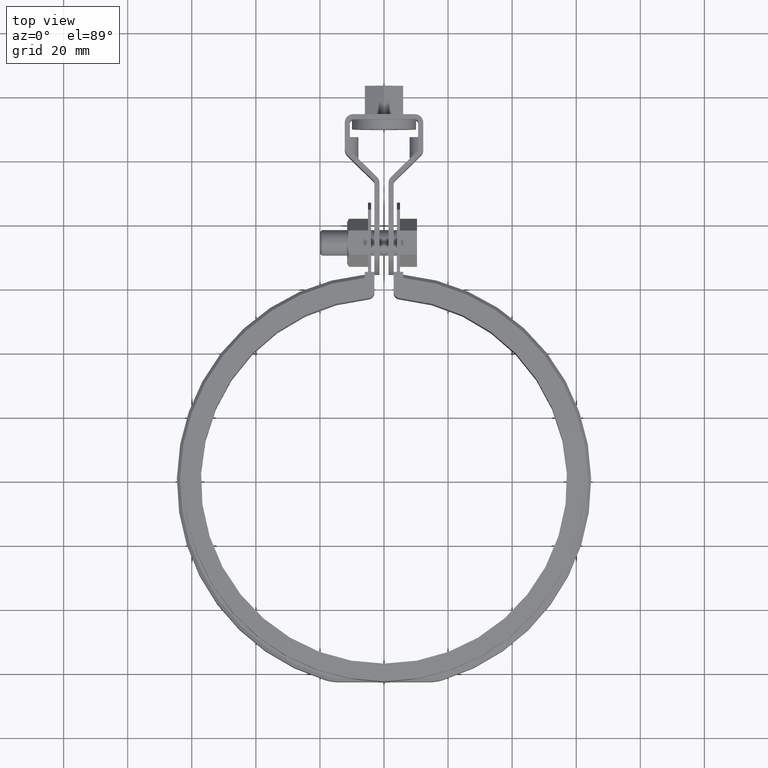
[diagram: clean part render]
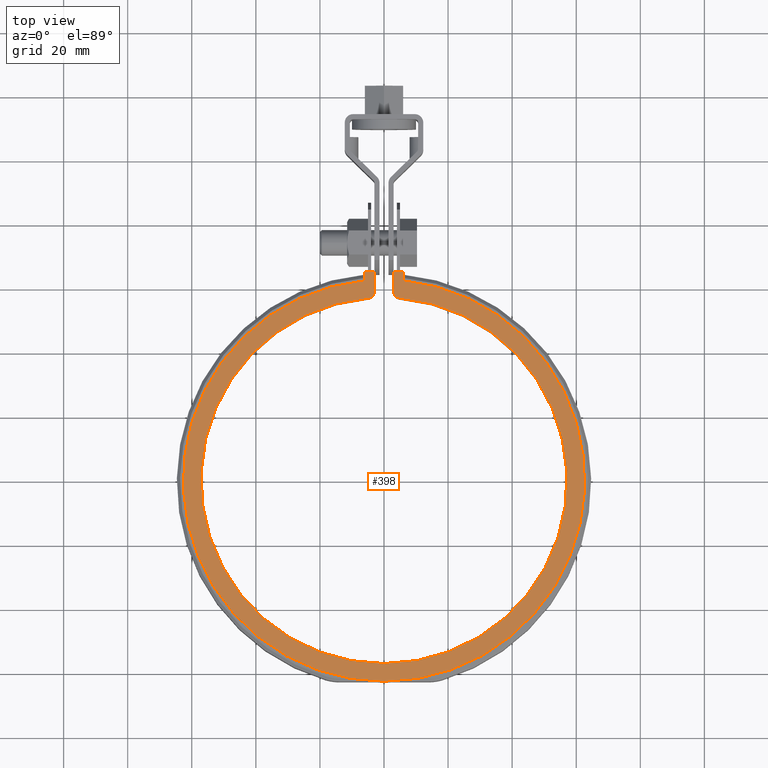
[diagram: same view with one face highlighted and labeled with its STEP entity id]
A machine part, top view. The second image highlights one B-rep face of the part: STEP entity #398.
In plain terms, the highlighted planar face has unit normal (0, 0, -1).
Its self-contained STEP definition (entity closure, byte-faithful):
#398 = ADVANCED_FACE( '', ( #702 ), #703, .F. );
#702 = FACE_OUTER_BOUND( '', #1594, .T. );
#703 = PLANE( '', #1595 );
#1594 = EDGE_LOOP( '', ( #3163, #3164, #3165, #3166, #3167, #3168, #3169, #3170, #3171, #3172 ) );
#1595 = AXIS2_PLACEMENT_3D( '', #3173, #3174, #3175 );
#3163 = ORIENTED_EDGE( '', *, *, #4433, .T. );
#3164 = ORIENTED_EDGE( '', *, *, #4421, .T. );
#3165 = ORIENTED_EDGE( '', *, *, #4402, .T. );
#3166 = ORIENTED_EDGE( '', *, *, #4375, .T. );
#3167 = ORIENTED_EDGE( '', *, *, #4410, .T. );
#3168 = ORIENTED_EDGE( '', *, *, #4425, .T. );
#3169 = ORIENTED_EDGE( '', *, *, #4434, .T. );
#3170 = ORIENTED_EDGE( '', *, *, #4327, .T. );
#3171 = ORIENTED_EDGE( '', *, *, #4435, .T. );
#3172 = ORIENTED_EDGE( '', *, *, #4436, .T. );
#3173 = CARTESIAN_POINT( '', ( 5.23468564512154, 60.8144995511336, 14.0000000000000 ) );
#3174 = DIRECTION( '', ( 0.000000000000000, 0.000000000000000, -1.00000000000000 ) );
#3175 = DIRECTION( '', ( 0.112630732099760, 0.993636914665851, 0.000000000000000 ) );
#4327 = EDGE_CURVE( '', #5015, #5016, #5017, .T. );
#4375 = EDGE_CURVE( '', #5095, #5093, #5096, .T. );
#4402 = EDGE_CURVE( '', #5142, #5095, #5143, .T. );
#4410 = EDGE_CURVE( '', #5093, #5155, #5157, .T. );
#4421 = EDGE_CURVE( '', #5172, #5142, #5173, .T. );
#4425 = EDGE_CURVE( '', #5155, #5178, #5180, .T. );
#4433 = EDGE_CURVE( '', #5191, #5172, #5192, .T. );
#4434 = EDGE_CURVE( '', #5178, #5015, #5193, .T. );
#4435 = EDGE_CURVE( '', #5016, #5194, #5195, .T. );
#4436 = EDGE_CURVE( '', #5194, #5191, #5196, .T. );
#5015 = VERTEX_POINT( '', #7254 );
#5016 = VERTEX_POINT( '', #7255 );
#5017 = CIRCLE( '', #7256, 2.00000000000000 );
#5093 = VERTEX_POINT( '', #7634 );
#5095 = VERTEX_POINT( '', #7637 );
#5096 = CIRCLE( '', #7638, 62.6500000000000 );
#5142 = VERTEX_POINT( '', #7903 );
#5143 = LINE( '', #7904, #7905 );
#5155 = VERTEX_POINT( '', #7925 );
#5157 = LINE( '', #7928, #7929 );
#5172 = VERTEX_POINT( '', #7965 );
#5173 = LINE( '', #7966, #7967 );
#5178 = VERTEX_POINT( '', #7974 );
#5180 = LINE( '', #7977, #7978 );
#5191 = VERTEX_POINT( '', #7994 );
#5192 = LINE( '', #7995, #7996 );
#5193 = LINE( '', #7997, #7998 );
#5194 = VERTEX_POINT( '', #7999 );
#5195 = CIRCLE( '', #8000, 57.1500000000000 );
#5196 = CIRCLE( '', #8001, 2.00000000000000 );
#7254 = CARTESIAN_POINT( '', ( 3.00000000000000, 58.9382940031352, 14.0000000000000 ) );
#7255 = CARTESIAN_POINT( '', ( 4.83093829247670, 56.9454522785998, 14.0000000000000 ) );
#7256 = AXIS2_PLACEMENT_3D( '', #8954, #8955, #8956 );
#7634 = CARTESIAN_POINT( '', ( 5.99999999999996, 62.3620277091757, 14.0000000000000 ) );
#7637 = CARTESIAN_POINT( '', ( -6.00000000000000, 62.3620277091757, 14.0000000000000 ) );
#7638 = AXIS2_PLACEMENT_3D( '', #9014, #9015, #9016 );
#7903 = CARTESIAN_POINT( '', ( -6.00000000000002, 65.1500000000000, 14.0000000000000 ) );
#7904 = CARTESIAN_POINT( '', ( -6.00000000000000, 65.1500000000000, 14.0000000000000 ) );
#7905 = VECTOR( '', #9046, 1000.00000000000 );
#7925 = CARTESIAN_POINT( '', ( 6.00000000000001, 65.1500000000000, 14.0000000000000 ) );
#7928 = CARTESIAN_POINT( '', ( 6.00000000000001, 62.3620277091758, 14.0000000000000 ) );
#7929 = VECTOR( '', #9053, 1000.00000000000 );
#7965 = CARTESIAN_POINT( '', ( -2.99999999999995, 65.1500000000000, 14.0000000000000 ) );
#7966 = CARTESIAN_POINT( '', ( -5.00000000000001, 65.1500000000000, 14.0000000000000 ) );
#7967 = VECTOR( '', #9061, 1000.00000000000 );
#7974 = CARTESIAN_POINT( '', ( 3.00000000000001, 65.1500000000000, 14.0000000000000 ) );
#7977 = CARTESIAN_POINT( '', ( 6.00000000000001, 65.1500000000000, 14.0000000000000 ) );
#7978 = VECTOR( '', #9065, 1000.00000000000 );
#7994 = CARTESIAN_POINT( '', ( -2.99999999999995, 58.9382940031352, 14.0000000000000 ) );
#7995 = CARTESIAN_POINT( '', ( -2.99999999999995, 58.9382940031352, 14.0000000000000 ) );
#7996 = VECTOR( '', #9077, 1000.00000000000 );
#7997 = CARTESIAN_POINT( '', ( 3.00000000000000, 65.1500000000000, 14.0000000000000 ) );
#7998 = VECTOR( '', #9078, 1000.00000000000 );
#7999 = CARTESIAN_POINT( '', ( -4.83093829247667, 56.9454522785998, 14.0000000000000 ) );
#8000 = AXIS2_PLACEMENT_3D( '', #9079, #9080, #9081 );
#8001 = AXIS2_PLACEMENT_3D( '', #9082, #9083, #9084 );
#8954 = CARTESIAN_POINT( '', ( 5.00000000000000, 58.9382940031352, 14.0000000000000 ) );
#8955 = DIRECTION( '', ( 0.000000000000000, 0.000000000000000, 1.00000000000000 ) );
#8956 = DIRECTION( '', ( -1.00000000000000, -1.17961196366423E-015, 0.000000000000000 ) );
#9014 = CARTESIAN_POINT( '', ( 8.67361737988404E-016, 0.000000000000000, 14.0000000000000 ) );
#9015 = DIRECTION( '', ( 0.000000000000000, 0.000000000000000, 1.00000000000000 ) );
#9016 = DIRECTION( '', ( 1.00000000000000, 2.77555756156289E-017, 0.000000000000000 ) );
#9046 = DIRECTION( '', ( -6.93889390390723E-017, -1.00000000000000, 0.000000000000000 ) );
#9053 = DIRECTION( '', ( 6.93889390390723E-017, 1.00000000000000, 0.000000000000000 ) );
#9061 = DIRECTION( '', ( -1.00000000000000, 0.000000000000000, 0.000000000000000 ) );
#9065 = DIRECTION( '', ( -1.00000000000000, 0.000000000000000, 0.000000000000000 ) );
#9077 = DIRECTION( '', ( -1.38777878078145E-017, 1.00000000000000, 0.000000000000000 ) );
#9078 = DIRECTION( '', ( 1.38777878078145E-017, -1.00000000000000, 0.000000000000000 ) );
#9079 = CARTESIAN_POINT( '', ( 3.46944695195361E-015, 3.46944695195361E-014, 14.0000000000000 ) );
#9080 = DIRECTION( '', ( 0.000000000000000, 0.000000000000000, -1.00000000000000 ) );
#9081 = DIRECTION( '', ( 1.00000000000000, -5.55111512312578E-017, 0.000000000000000 ) );
#9082 = CARTESIAN_POINT( '', ( -4.99999999999995, 58.9382940031352, 14.0000000000000 ) );
#9083 = DIRECTION( '', ( 0.000000000000000, 0.000000000000000, 1.00000000000000 ) );
#9084 = DIRECTION( '', ( 1.00000000000000, -2.38697950294409E-015, 0.000000000000000 ) );